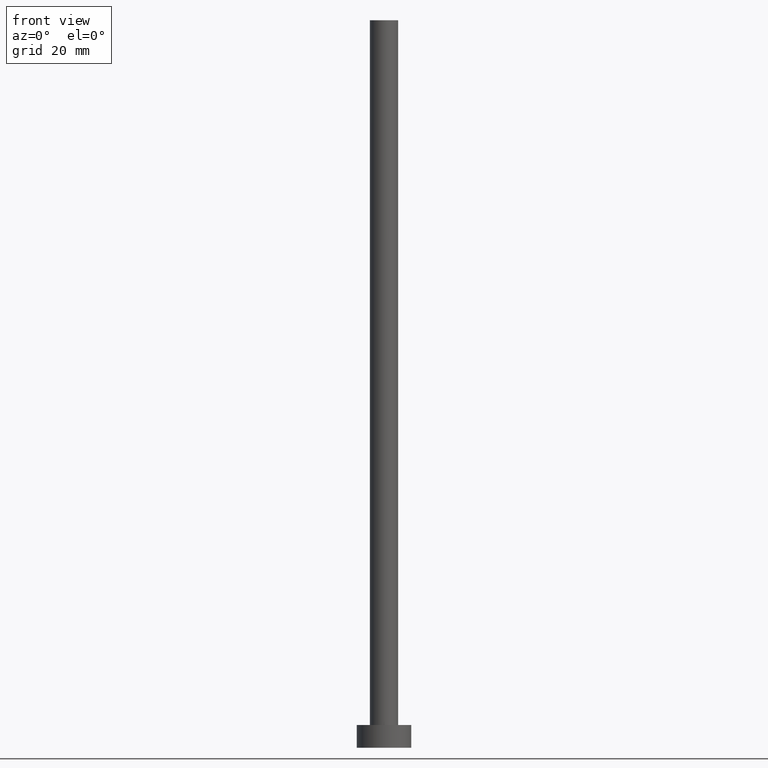
[diagram: clean part render]
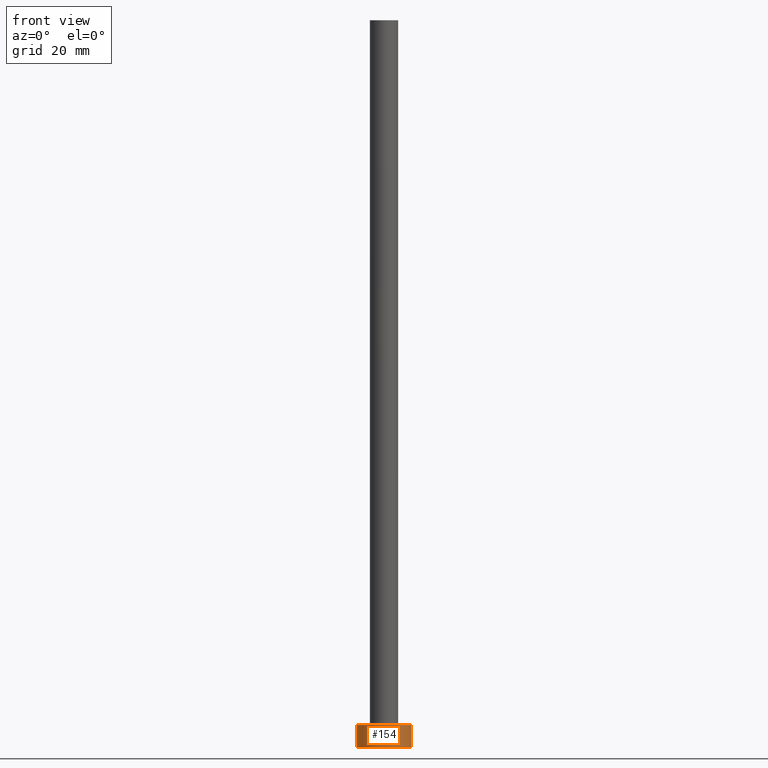
[diagram: same view with one face highlighted and labeled with its STEP entity id]
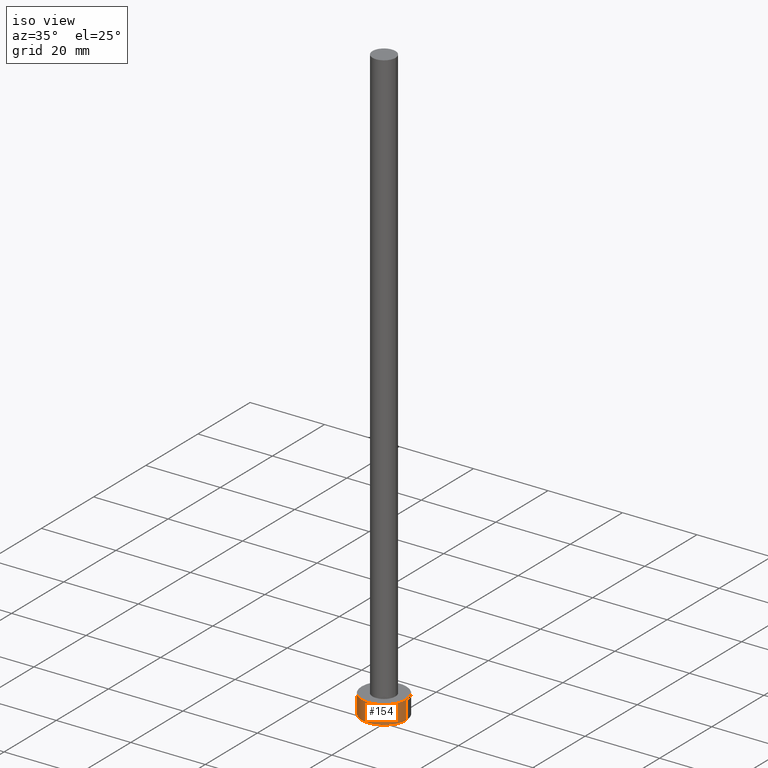
[diagram: same view with one face highlighted and labeled with its STEP entity id]
A machine part, front view. The second image highlights one B-rep face of the part: STEP entity #154.
A second angle (iso view) of the same face is appended — the face is thin or edge-on in the first view.
In plain terms, the highlighted cylindrical surface (edge-blend (fillet) strip) has radius 6 mm, axis along (-0, -0, -1).
Its self-contained STEP definition (entity closure, byte-faithful):
#12 = CIRCLE ( 'NONE', #243, 6.000000000000000888 ) ;
#17 = CARTESIAN_POINT ( 'NONE',  ( -6.000000000000000888, 0.000000000000000000, 5.000000000000000000 ) ) ;
#19 = CARTESIAN_POINT ( 'NONE',  ( 0.000000000000000000, 0.000000000000000000, 5.000000000000000000 ) ) ;
#21 = CARTESIAN_POINT ( 'NONE',  ( 0.000000000000000000, 0.000000000000000000, 5.000000000000000000 ) ) ;
#23 = CARTESIAN_POINT ( 'NONE',  ( 6.000000000000000888, 7.347880794884120722E-16, 5.000000000000000000 ) ) ;
#24 = DIRECTION ( 'NONE',  ( 1.000000000000000000, 0.000000000000000000, 0.000000000000000000 ) ) ;
#33 = AXIS2_PLACEMENT_3D ( 'NONE', #21, #202, #224 ) ;
#40 = CARTESIAN_POINT ( 'NONE',  ( -6.000000000000000888, 0.000000000000000000, 0.000000000000000000 ) ) ;
#42 = FACE_OUTER_BOUND ( 'NONE', #107, .T. ) ;
#44 = DIRECTION ( 'NONE',  ( -0.000000000000000000, -0.000000000000000000, -1.000000000000000000 ) ) ;
#54 = VERTEX_POINT ( 'NONE', #17 ) ;
#56 = VECTOR ( 'NONE', #44, 1000.000000000000000 ) ;
#59 = CARTESIAN_POINT ( 'NONE',  ( 0.000000000000000000, 0.000000000000000000, 0.000000000000000000 ) ) ;
#69 = ORIENTED_EDGE ( 'NONE', *, *, #134, .F. ) ;
#70 = VERTEX_POINT ( 'NONE', #40 ) ;
#75 = LINE ( 'NONE', #109, #56 ) ;
#88 = EDGE_CURVE ( 'NONE', #54, #123, #12, .T. ) ;
#102 = ORIENTED_EDGE ( 'NONE', *, *, #88, .F. ) ;
#107 = EDGE_LOOP ( 'NONE', ( #69, #102, #125, #153 ) ) ;
#109 = CARTESIAN_POINT ( 'NONE',  ( 6.000000000000000888, 7.347880794884120722E-16, 5.000000000000000000 ) ) ;
#123 = VERTEX_POINT ( 'NONE', #23 ) ;
#125 = ORIENTED_EDGE ( 'NONE', *, *, #144, .T. ) ;
#133 = VECTOR ( 'NONE', #246, 1000.000000000000000 ) ;
#134 = EDGE_CURVE ( 'NONE', #123, #236, #75, .T. ) ;
#135 = CARTESIAN_POINT ( 'NONE',  ( -6.000000000000000888, 0.000000000000000000, 5.000000000000000000 ) ) ;
#144 = EDGE_CURVE ( 'NONE', #54, #70, #218, .T. ) ;
#153 = ORIENTED_EDGE ( 'NONE', *, *, #188, .T. ) ;
#154 = ADVANCED_FACE ( 'NONE', ( #42 ), #180, .T. ) ;
#175 = DIRECTION ( 'NONE',  ( 0.000000000000000000, 0.000000000000000000, 1.000000000000000000 ) ) ;
#176 = CIRCLE ( 'NONE', #230, 6.000000000000000888 ) ;
#177 = DIRECTION ( 'NONE',  ( 1.000000000000000000, 0.000000000000000000, 0.000000000000000000 ) ) ;
#180 = CYLINDRICAL_SURFACE ( 'NONE', #33, 6.000000000000000888 ) ;
#188 = EDGE_CURVE ( 'NONE', #70, #236, #176, .T. ) ;
#202 = DIRECTION ( 'NONE',  ( -0.000000000000000000, -0.000000000000000000, -1.000000000000000000 ) ) ;
#205 = DIRECTION ( 'NONE',  ( 0.000000000000000000, 0.000000000000000000, 1.000000000000000000 ) ) ;
#218 = LINE ( 'NONE', #135, #133 ) ;
#224 = DIRECTION ( 'NONE',  ( -1.000000000000000000, 0.000000000000000000, 0.000000000000000000 ) ) ;
#230 = AXIS2_PLACEMENT_3D ( 'NONE', #59, #205, #24 ) ;
#236 = VERTEX_POINT ( 'NONE', #250 ) ;
#243 = AXIS2_PLACEMENT_3D ( 'NONE', #19, #175, #177 ) ;
#246 = DIRECTION ( 'NONE',  ( -0.000000000000000000, -0.000000000000000000, -1.000000000000000000 ) ) ;
#250 = CARTESIAN_POINT ( 'NONE',  ( 6.000000000000000888, 7.347880794884120722E-16, 0.000000000000000000 ) ) ;